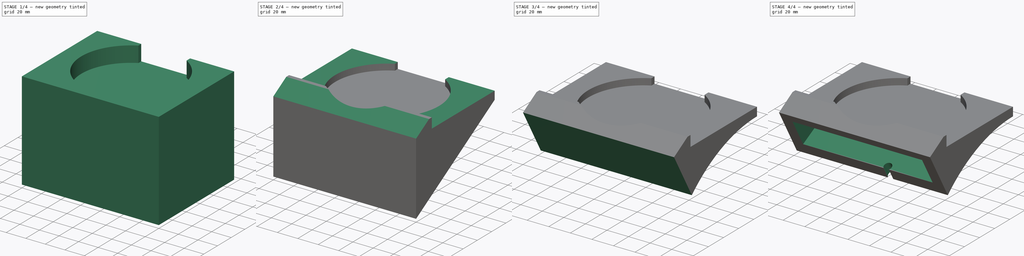
[diagram: build sequence overview — one tinted view per stage of 4, left to right]
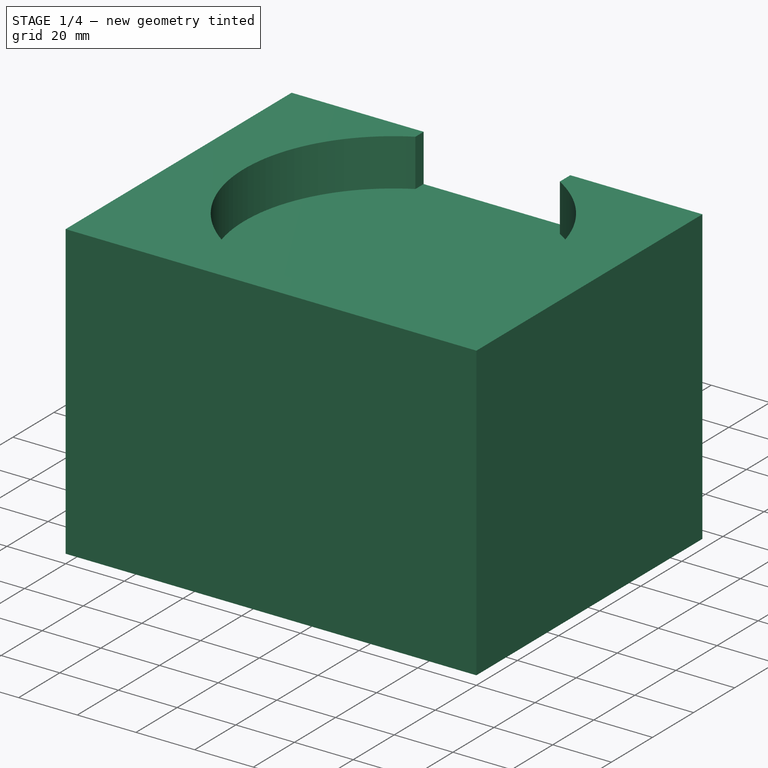
[diagram: stage 1 of 4 — iso view after this stage's code; geometry added in this stage tinted green]
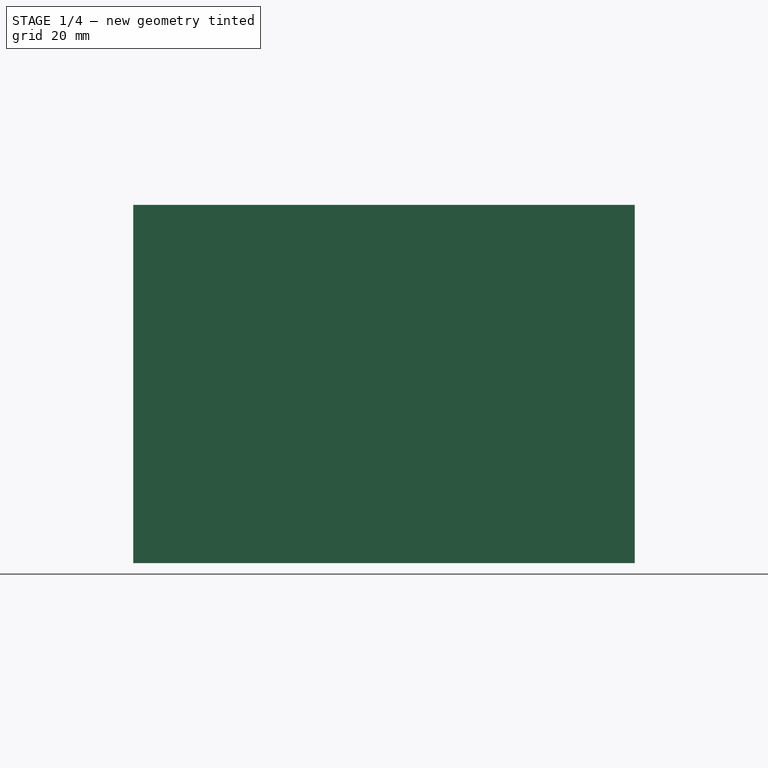
[diagram: stage 1 of 4 — front view after this stage's code; geometry added in this stage tinted green]
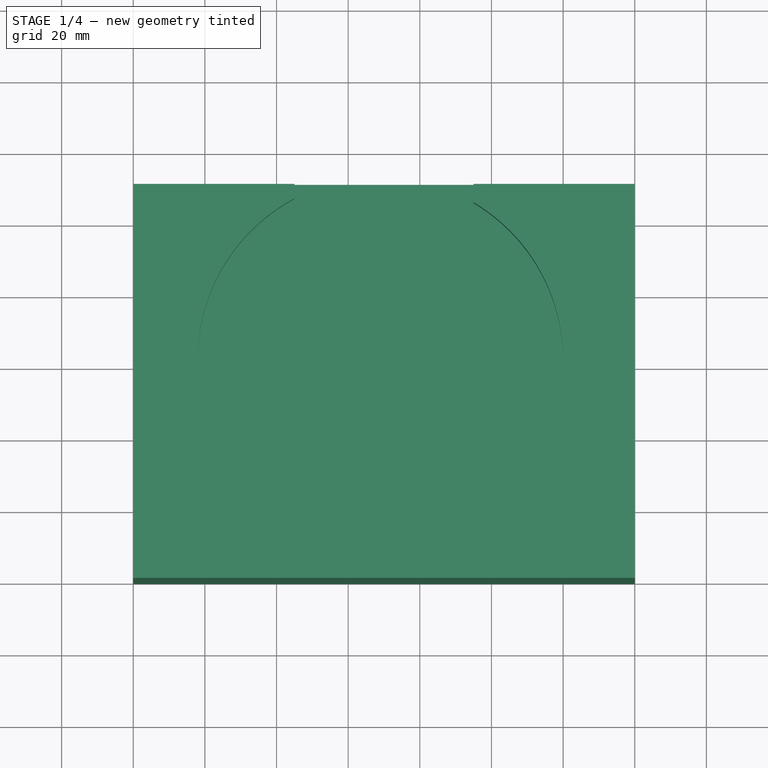
[diagram: stage 1 of 4 — top view after this stage's code; geometry added in this stage tinted green]
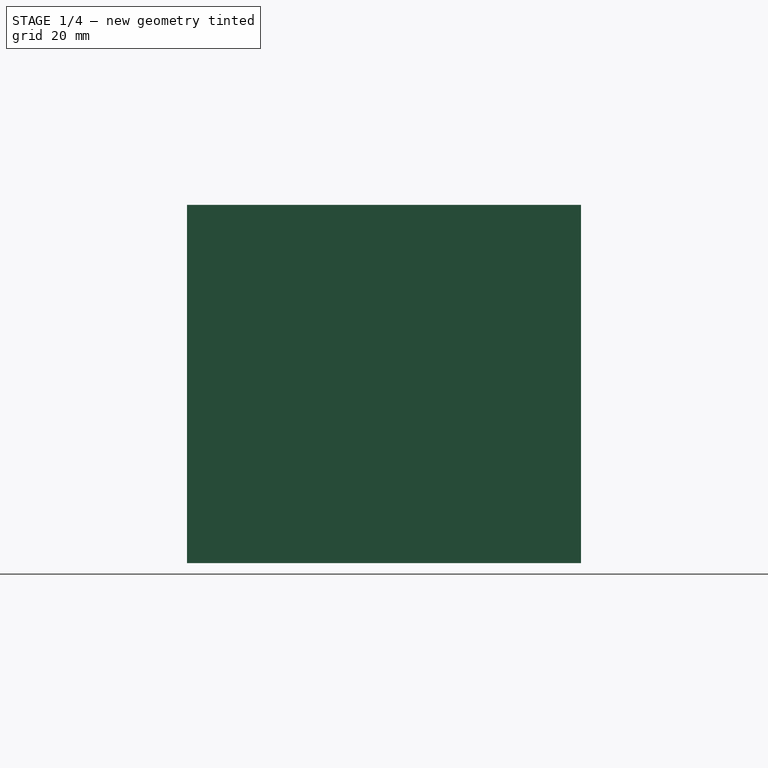
[diagram: stage 1 of 4 — right view after this stage's code; geometry added in this stage tinted green]
FCSTD DOCUMENT  (FreeCAD 1.0R2_voidlinux)
Label: phonestandv2
License: All rights reserved
LicenseURL: https://en.wikipedia.org/wiki/All_rights_reserved
objects: Sketcher::SketchObject×12, PartDesign::Pocket×11, PartDesign::Pad×1, PartDesign::Plane×1, PartDesign::Body×1
note: 62 computed .brp shape members not serialized (recipe doc carries the construction recipe); baked Part::Feature solids carry a one-line shape summary decoded from their .brp

FEATURE [Sketcher::SketchObject] Sketch
  ArcFitTolerance = 1e-06
  AttachmentSupport = -> [XY_Plane]
  FullyConstrained = true
  MakeInternals = false
  MapMode = 5
  sketch-geometry (4):
    g0: LineSegment StartX=0 StartY=0 StartZ=0 EndX=140 EndY=0 EndZ=0
    g1: LineSegment StartX=140 StartY=0 StartZ=0 EndX=140 EndY=110 EndZ=0
    g2: LineSegment StartX=140 StartY=110 StartZ=0 EndX=0 EndY=110 EndZ=0
    g3: LineSegment StartX=0 StartY=110 StartZ=0 EndX=0 EndY=0 EndZ=0
  constraints (11):
    c: Coincident(g0,g1)
    c: Coincident(g1,g2)
    c: Coincident(g2,g3)
    c: Coincident(g3,g0)
    c: Horizontal(g0)
    c: Horizontal(g2)
    c: Vertical(g1)
    c: Vertical(g3)
    c: Distance(g1,g3) = 140
    c: Distance(g0,g2) = 110
    c: Coincident(g0,g-1)
FEATURE [PartDesign::Pad] Pad
  Direction = (0,0,1)
  Length = 100
  Length2 = 10
  Profile = -> Sketch
  ReferenceAxis = -> Sketch [N_Axis]
  Refine = true
  Suppressed = false
  Type = 0
FEATURE [Sketcher::SketchObject] Sketch001
  ArcFitTolerance = 1e-06
  AttachmentSupport = -> [Pad]
  FullyConstrained = true
  MakeInternals = false
  MapMode = 5
  Placement = pos=(0,0,100) rot=(0,0,1;0rad)
  sketch-geometry (1):
    g0: Circle CenterX=69 CenterY=61 CenterZ=0 NormalX=0 NormalY=0 NormalZ=1 AngleXU=0 Radius=51
  constraints (3):
    c: Diameter(g0) = 102
    c: DistanceY(g-1,g0) = 61
    c: DistanceX(g-1,g0) = 69
FEATURE [PartDesign::Pocket] Pocket
  BaseFeature = -> Pad
  Direction = (0,0,-1)
  Length = 16.1
  Length2 = 5
  Profile = -> Sketch001
  ReferenceAxis = -> Sketch001 [N_Axis]
  Refine = true
  Suppressed = false
  Type = 0
FEATURE [Sketcher::SketchObject] Sketch002
  ArcFitTolerance = 1e-06
  AttachmentSupport = -> [Pocket]
  FullyConstrained = true
  MakeInternals = false
  MapMode = 5
  Placement = pos=(0,0,100) rot=(0,0,1;0rad)
  sketch-geometry (4):
    g0: LineSegment StartX=45 StartY=110 StartZ=0 EndX=95 EndY=110 EndZ=0
    g1: LineSegment StartX=95 StartY=110 StartZ=0 EndX=95 EndY=102.851 EndZ=0
    g2: LineSegment StartX=95 StartY=102.851 StartZ=0 EndX=45 EndY=102.851 EndZ=0
    g3: LineSegment StartX=45 StartY=110 StartZ=0 EndX=45 EndY=102.851 EndZ=0
  constraints (12):
    c: Distance(g0) = 50
    c: Horizontal(g0)
    c: DistanceX(g-1,g0) = 45
    c: DistanceY(g-1,g0) = 110
    c: Vertical(g1)
    c: Coincident(g1,g0)
    c: Horizontal(g2)
    c: Coincident(g2,g1)
    c: Equal(g2,g0)
    c: Vertical(g3)
    c: Coincident(g3,g0)
    c: Coincident(g3,g2)
FEATURE [PartDesign::Pocket] Pocket001
  BaseFeature = -> Pocket
  Direction = (0,0,-1)
  Length = 16.1
  Length2 = 5
  Profile = -> Sketch002
  ReferenceAxis = -> Sketch002 [N_Axis]
  Refine = true
  Suppressed = false
  Type = 0
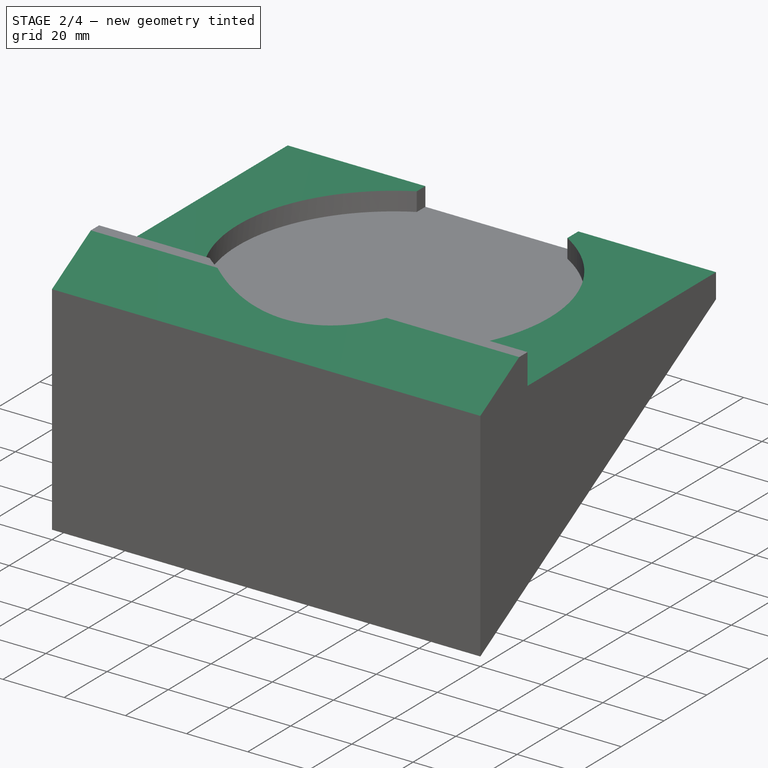
[diagram: stage 2 of 4 — iso view after this stage's code; geometry added in this stage tinted green]
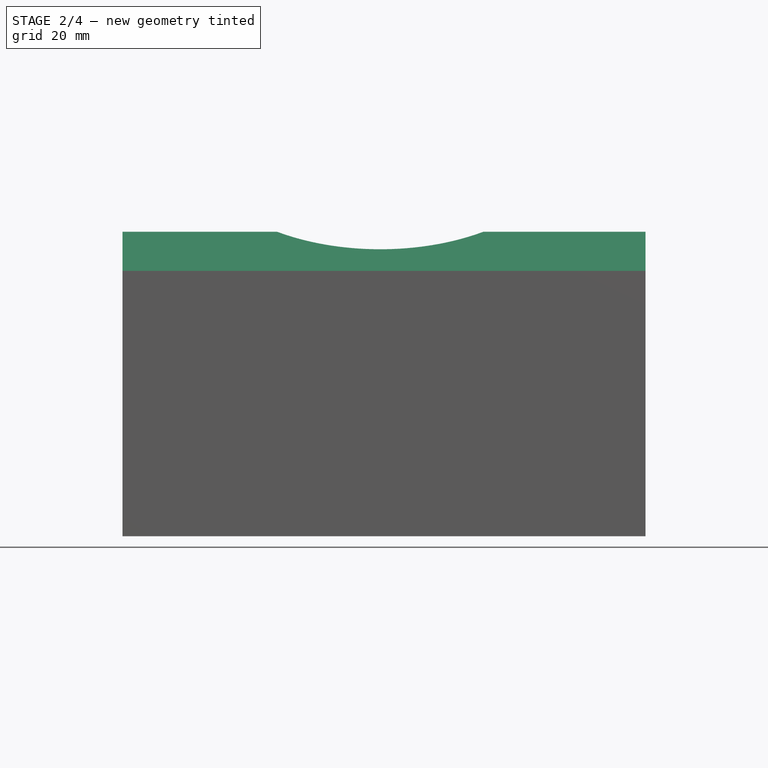
[diagram: stage 2 of 4 — front view after this stage's code; geometry added in this stage tinted green]
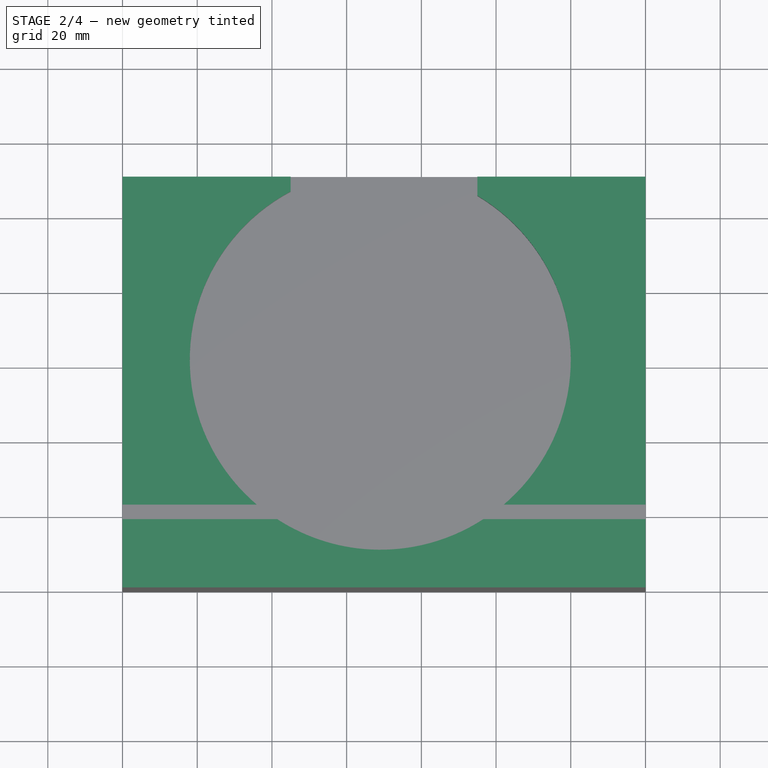
[diagram: stage 2 of 4 — top view after this stage's code; geometry added in this stage tinted green]
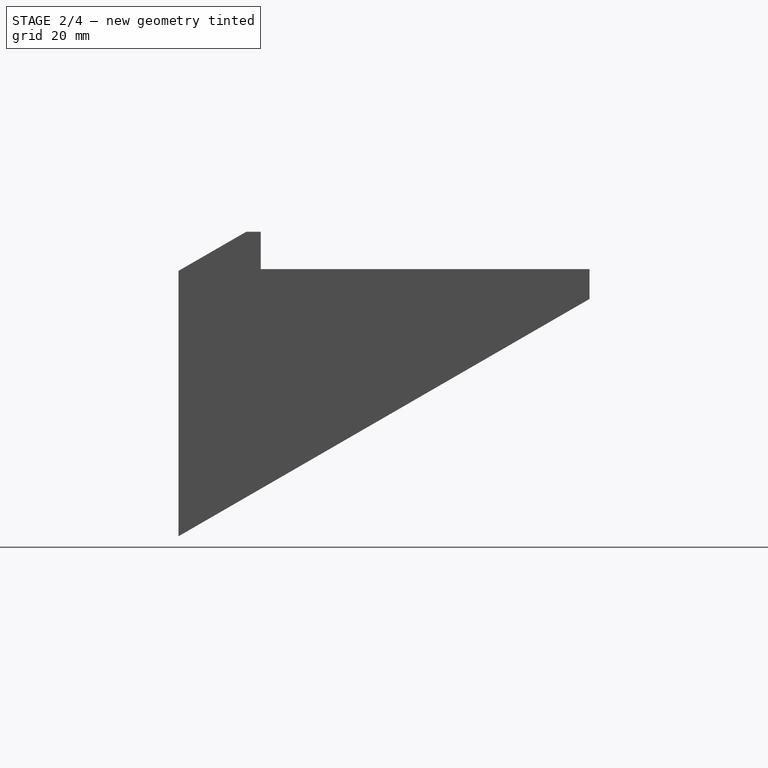
[diagram: stage 2 of 4 — right view after this stage's code; geometry added in this stage tinted green]
FEATURE [Sketcher::SketchObject] Sketch003
  ArcFitTolerance = 1e-06
  AttachmentSupport = -> [Pocket001]
  FullyConstrained = true
  MakeInternals = false
  MapMode = 5
  Placement = pos=(0,0,100) rot=(0,0,1;0rad)
  sketch-geometry (4):
    g0: LineSegment StartX=0 StartY=22 StartZ=0 EndX=140 EndY=22 EndZ=0
    g1: LineSegment StartX=0 StartY=22 StartZ=0 EndX=0 EndY=112 EndZ=0
    g2: LineSegment StartX=0 StartY=112 StartZ=0 EndX=140 EndY=112 EndZ=0
    g3: LineSegment StartX=140 StartY=112 StartZ=0 EndX=140 EndY=22 EndZ=0
  constraints (12):
    c: Distance(g0) = 140
    c: Horizontal(g0)
    c: PointOnObject(g0,g-2)
    c: DistanceY(g-1,g0) = 22
    c: Distance(g1) = 90
    c: Coincident(g1,g0)
    c: PointOnObject(g1,g-2)
    c: Distance(g2) = 140
    c: Coincident(g2,g1)
    c: Horizontal(g2)
    c: Coincident(g3,g2)
    c: Coincident(g3,g0)
FEATURE [PartDesign::Pocket] Pocket002
  BaseFeature = -> Pocket001
  Direction = (0,0,-1)
  Length = 10
  Length2 = 5
  Profile = -> Sketch003
  ReferenceAxis = -> Sketch003 [N_Axis]
  Refine = true
  Suppressed = false
  Type = 0
FEATURE [Sketcher::SketchObject] Sketch005
  ArcFitTolerance = 1e-06
  AttachmentSupport = -> [Pocket002]
  FullyConstrained = true
  MakeInternals = false
  MapMode = 5
  Placement = pos=(0,0,0) rot=(0.57735,-0.57735,-0.57735;2.0944rad)
  sketch-geometry (3):
    g0: LineSegment StartX=-18.9808 StartY=100.5 StartZ=0 EndX=7 EndY=85.5 EndZ=0
    g1: LineSegment StartX=-18.9808 StartY=100.5 StartZ=0 EndX=7 EndY=100.5 EndZ=0
    g2: LineSegment StartX=7 StartY=85.5 StartZ=0 EndX=7 EndY=100.5 EndZ=0
  constraints (9):
    c: Distance(g0) = 30
    c: Angle(g-1,g0) = -0.523599
    c: DistanceY(g-1,g0) = 85.5
    c: DistanceX(g-1,g0) = 7
    c: Horizontal(g1)
    c: Coincident(g1,g0)
    c: Coincident(g2,g0)
    c: Coincident(g2,g1)
    c: Vertical(g2)
FEATURE [PartDesign::Pocket] Pocket004
  BaseFeature = -> Pocket002
  Direction = (1,0,0)
  Length = 5
  Length2 = 5
  Profile = -> Sketch005
  ReferenceAxis = -> Sketch005 [N_Axis]
  Refine = true
  Suppressed = false
  Type = 1
FEATURE [Sketcher::SketchObject] Sketch006
  ArcFitTolerance = 1e-06
  AttachmentSupport = -> [Pocket004]
  FullyConstrained = true
  MakeInternals = false
  MapMode = 5
  Placement = pos=(0,0,0) rot=(0.57735,-0.57735,-0.57735;2.0944rad)
  sketch-geometry (4):
    g0: LineSegment StartX=-110 StartY=82 StartZ=0 EndX=0 EndY=18.4914 EndZ=0
    g1: LineSegment StartX=0 StartY=18.4914 StartZ=0 EndX=0 EndY=0 EndZ=0
    g2: LineSegment StartX=0 StartY=0 StartZ=0 EndX=-110 EndY=0 EndZ=0
    g3: LineSegment StartX=-110 StartY=0 StartZ=0 EndX=-110 EndY=82 EndZ=0
  constraints (11):
    c: Angle(g-1,g0) = -0.523599
    c: PointOnObject(g0,g-2)
    c: DistanceY(g-1,g0) = 82
    c: Coincident(g1,g0)
    c: Coincident(g1,g-1)
    c: Distance(g2) = 110
    c: Coincident(g2,g1)
    c: PointOnObject(g2,g-1)
    c: Coincident(g3,g2)
    c: Coincident(g3,g0)
    c: Vertical(g3)
FEATURE [PartDesign::Pocket] Pocket005
  BaseFeature = -> Pocket004
  Direction = (1,0,0)
  Length = 140
  Length2 = 5
  Profile = -> Sketch006
  ReferenceAxis = -> Sketch006 [N_Axis]
  Refine = true
  Suppressed = false
  Type = 0
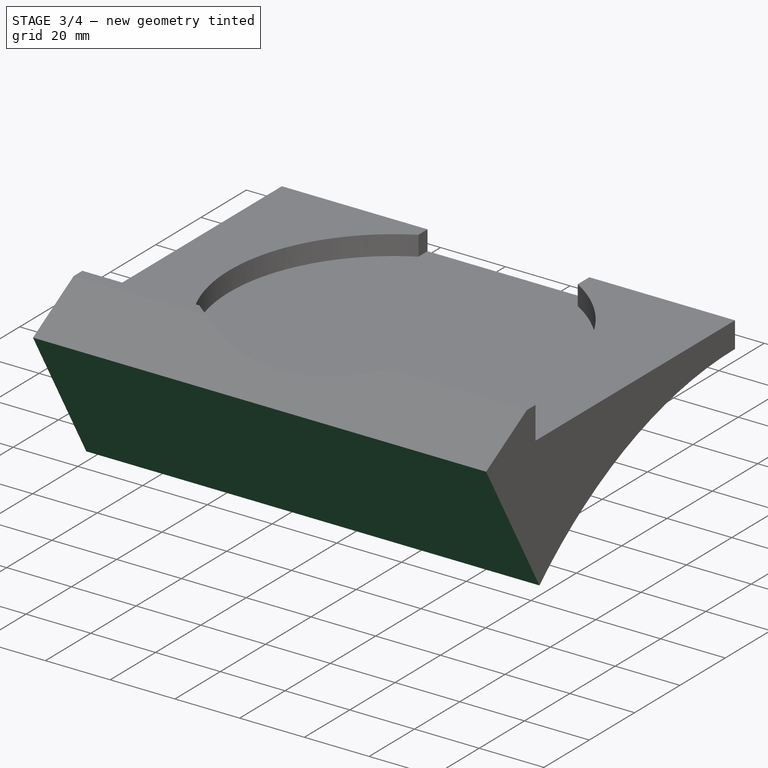
[diagram: stage 3 of 4 — iso view after this stage's code; geometry added in this stage tinted green]
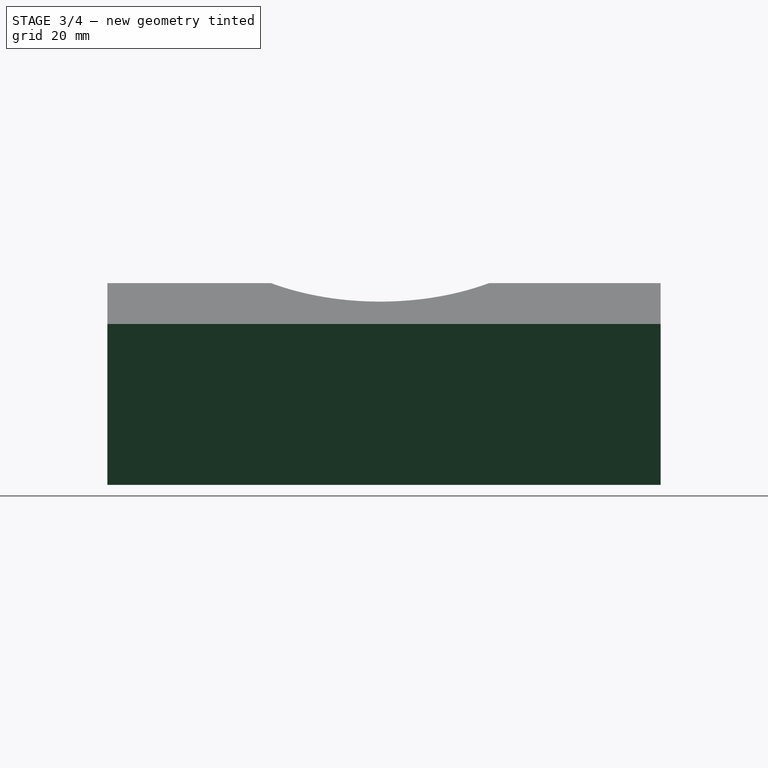
[diagram: stage 3 of 4 — front view after this stage's code; geometry added in this stage tinted green]
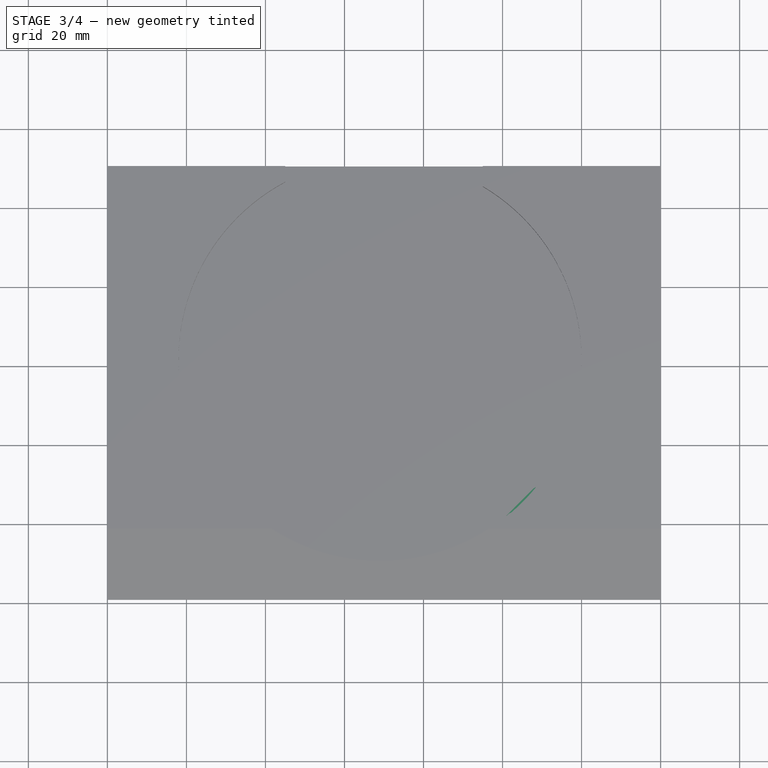
[diagram: stage 3 of 4 — top view after this stage's code; geometry added in this stage tinted green]
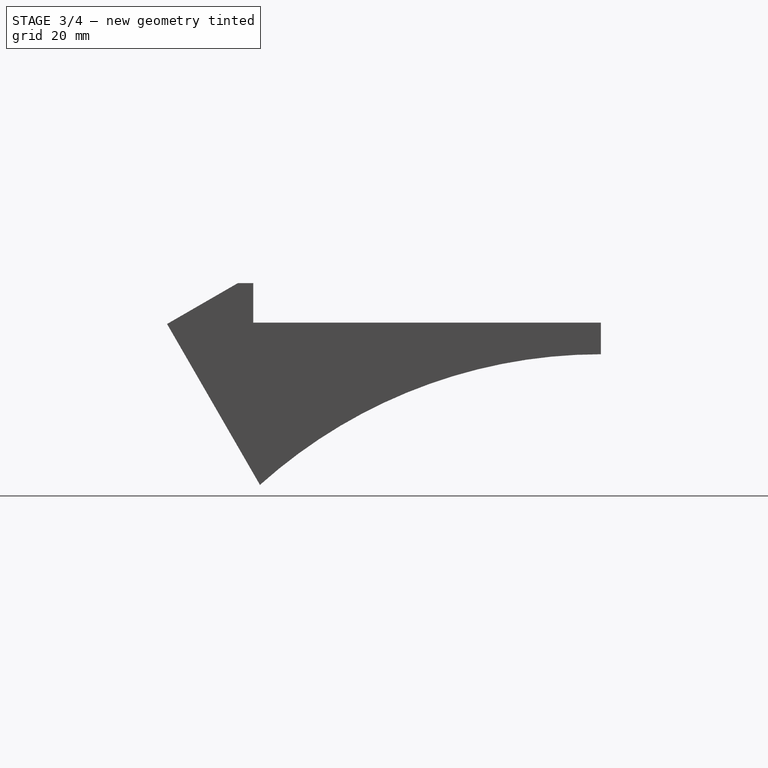
[diagram: stage 3 of 4 — right view after this stage's code; geometry added in this stage tinted green]
FEATURE [Sketcher::SketchObject] Sketch007
  ArcFitTolerance = 1e-06
  AttachmentSupport = -> [Pocket005]
  FullyConstrained = true
  MakeInternals = false
  MapMode = 5
  Placement = pos=(0,0,0) rot=(0.57735,-0.57735,-0.57735;2.0944rad)
  sketch-geometry (4):
    g0: LineSegment [constr] StartX=0 StartY=0 StartZ=0 EndX=0 EndY=82 EndZ=0
    g1: LineSegment [constr] StartX=0 StartY=82 StartZ=0 EndX=-110 EndY=82 EndZ=0
    g2: LineSegment [constr] StartX=0 StartY=0 StartZ=0 EndX=0 EndY=20.5 EndZ=0
    g3: Circle CenterX=-110 CenterY=-47.124 CenterZ=0 NormalX=0 NormalY=0 NormalZ=1 AngleXU=0 Radius=129.124
  constraints (11):
    c: Distance(g0) = 82
    c: Coincident(g0,g-1)
    c: PointOnObject(g0,g-2)
    c: Distance(g1) = 110
    c: Coincident(g1,g0)
    c: Horizontal(g1)
    c: Distance(g2) = 20.5
    c: Coincident(g2,g0)
    c: PointOnObject(g2,g0)
    c: PointOnObject(g2,g3)
    c: Tangent(g1,g3) = -1.5708
FEATURE [PartDesign::Pocket] Pocket006
  BaseFeature = -> Pocket005
  Direction = (1,0,0)
  Length = 5
  Length2 = 5
  Profile = -> Sketch007
  ReferenceAxis = -> Sketch007 [N_Axis]
  Refine = true
  Suppressed = false
  Type = 1
FEATURE [Sketcher::SketchObject] Sketch008
  ArcFitTolerance = 1e-06
  AttachmentSupport = -> [Pocket006]
  FullyConstrained = true
  MakeInternals = false
  MapMode = 5
  Placement = pos=(0,0,0) rot=(0.57735,-0.57735,-0.57735;2.0944rad)
  sketch-geometry (3):
    g0: LineSegment StartX=3.6e-15 StartY=0 StartZ=0 EndX=0 EndY=90 EndZ=0
    g1: LineSegment StartX=0 StartY=90 StartZ=0 EndX=-30 EndY=38.0385 EndZ=0
    g2: LineSegment StartX=-30 StartY=38.0385 StartZ=0 EndX=3.6e-15 EndY=0 EndZ=0
  constraints (8):
    c: Distance(g0) = 90
    c: Coincident(g0,g-1)
    c: PointOnObject(g0,g-2)
    c: Distance(g1) = 60
    c: Angle(g-1,g1) = -2.0944
    c: Coincident(g1,g0)
    c: Coincident(g2,g1)
    c: Coincident(g2,g0)
FEATURE [PartDesign::Pocket] Pocket007
  BaseFeature = -> Pocket006
  Direction = (1,0,0)
  Length = 5
  Length2 = 5
  Profile = -> Sketch008
  ReferenceAxis = -> Sketch008 [N_Axis]
  Refine = true
  Suppressed = false
  Type = 1
FEATURE [Sketcher::SketchObject] Sketch009
  ArcFitTolerance = 1e-06
  AttachmentSupport = -> [Pocket007]
  FullyConstrained = true
  MakeInternals = false
  MapMode = 5
  Placement = pos=(0,0,90) rot=(0,0,1;0rad)
  sketch-geometry (11):
    g0: LineSegment StartX=106.364 StartY=14.2645 StartZ=0 EndX=114.142 EndY=22.0426 EndZ=0
    g1: LineSegment StartX=114.142 StartY=24.8711 StartZ=0 EndX=110.607 EndY=28.4066 EndZ=0
    g2: LineSegment StartX=107.778 StartY=28.4066 StartZ=0 EndX=100 EndY=20.6284 EndZ=0
    g3: LineSegment StartX=100 StartY=17.8 StartZ=0 EndX=103.536 EndY=14.2645 EndZ=0
    g4: ArcOfCircle CenterX=104.95 CenterY=15.6787 CenterZ=0 NormalX=0 NormalY=0 NormalZ=1 AngleXU=0 Radius=2 StartAngle=3.92699 EndAngle=5.49779
    g5: ArcOfCircle CenterX=112.728 CenterY=23.4569 CenterZ=0 NormalX=0 NormalY=0 NormalZ=1 AngleXU=0 Radius=2 StartAngle=5.49779 EndAngle=7.06858
    g6: ArcOfCircle CenterX=109.192 CenterY=26.9924 CenterZ=0 NormalX=0 NormalY=0 NormalZ=1 AngleXU=0 Radius=2 StartAngle=0.785398 EndAngle=2.35619
    g7: ArcOfCircle CenterX=101.414 CenterY=19.2142 CenterZ=0 NormalX=0 NormalY=0 NormalZ=1 AngleXU=0 Radius=2 StartAngle=2.35619 EndAngle=3.92699
    g8: GeomPoint [constr] X=104.95 Y=12.8503 Z=0
    g9: GeomPoint [constr] X=115.556 Y=23.4569 Z=0
    g10: GeomPoint [constr] X=109.192 Y=29.8208 Z=0
  constraints (26):
    c: Tangent(g0,g4) = -1.5708
    c: Tangent(g0,g5) = -1.5708
    c: Tangent(g1,g5) = -1.5708
    c: Tangent(g1,g6) = -1.5708
    c: Tangent(g2,g6) = -1.5708
    c: Tangent(g2,g7) = -1.5708
    c: Tangent(g3,g7) = -1.5708
    c: Tangent(g3,g4) = -1.5708
    c: Parallel(g0,g2)
    c: Parallel(g1,g3)
    c: Perpendicular(g0,g1)
    c: Equal(g4,g5)
    c: Equal(g5,g6)
    c: Equal(g6,g7)
    c: PointOnObject(g9,g0)
    c: PointOnObject(g9,g1)
    c: PointOnObject(g8,g0)
    c: PointOnObject(g8,g3)
    c: PointOnObject(g10,g1)
    c: PointOnObject(g10,g2)
    c: Distance(g1,g3) = 15
    c: Distance(g0,g2) = 9
    c: Angle(g-1,g0) = 0.785398
    c: Radius(g5) = 2
    c: DistanceX(g-1,g3) = 100
    c: DistanceY(g-1,g3) = 17.8
FEATURE [PartDesign::Pocket] Pocket008
  BaseFeature = -> Pocket007
  Direction = (0,0,-1)
  Length = 7.1
  Length2 = -1.5
  Offset = -15
  Profile = -> Sketch009
  ReferenceAxis = -> Sketch009 [N_Axis]
  Refine = true
  Suppressed = false
  Type = 4
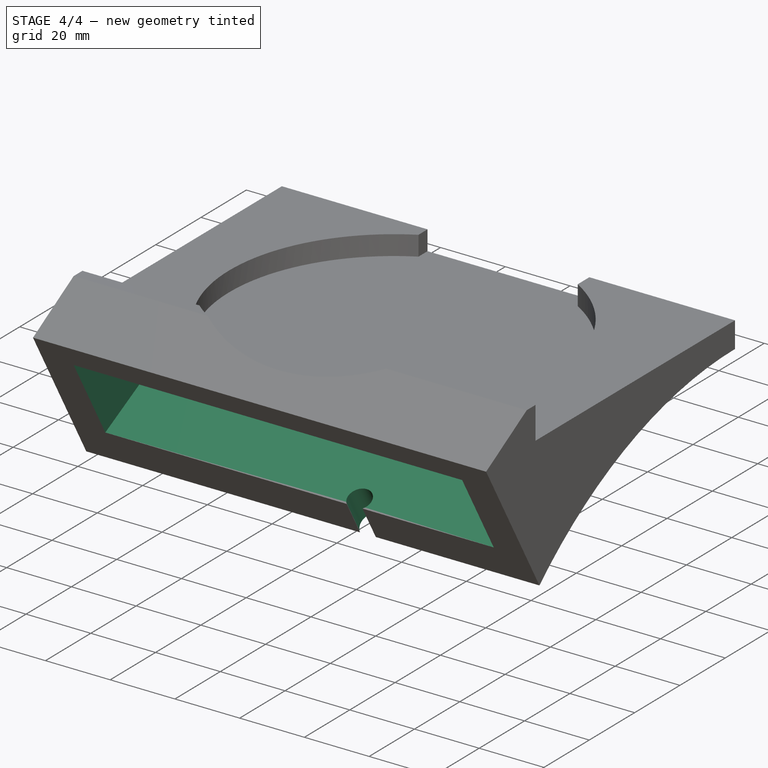
[diagram: stage 4 of 4 — iso view after this stage's code; geometry added in this stage tinted green]
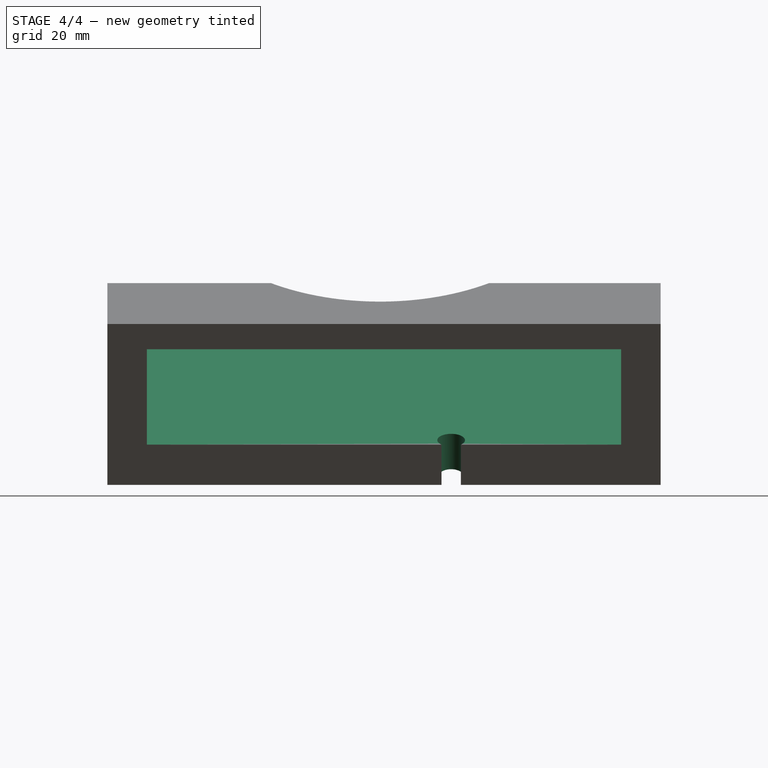
[diagram: stage 4 of 4 — front view after this stage's code; geometry added in this stage tinted green]
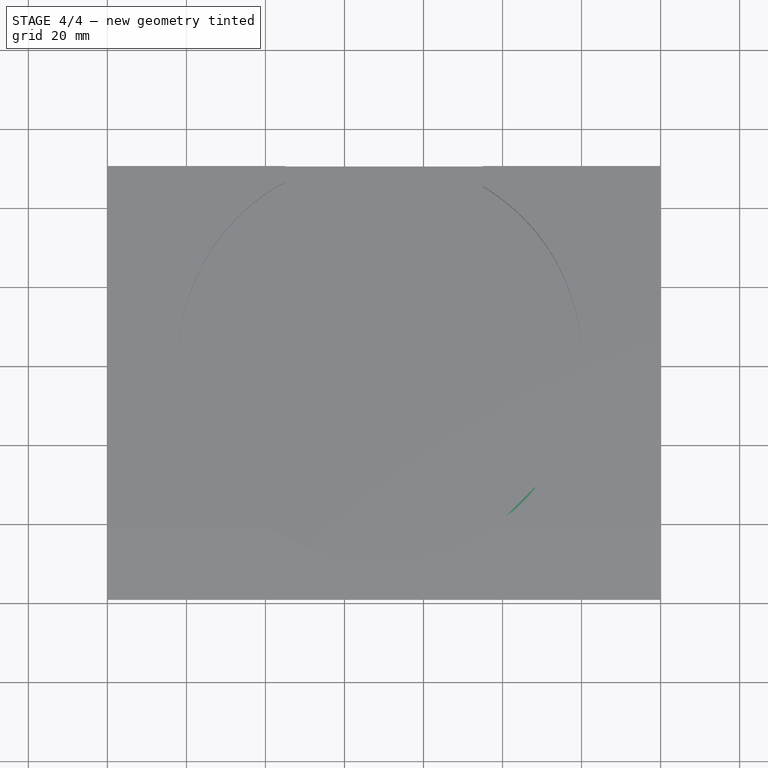
[diagram: stage 4 of 4 — top view after this stage's code; geometry added in this stage tinted green]
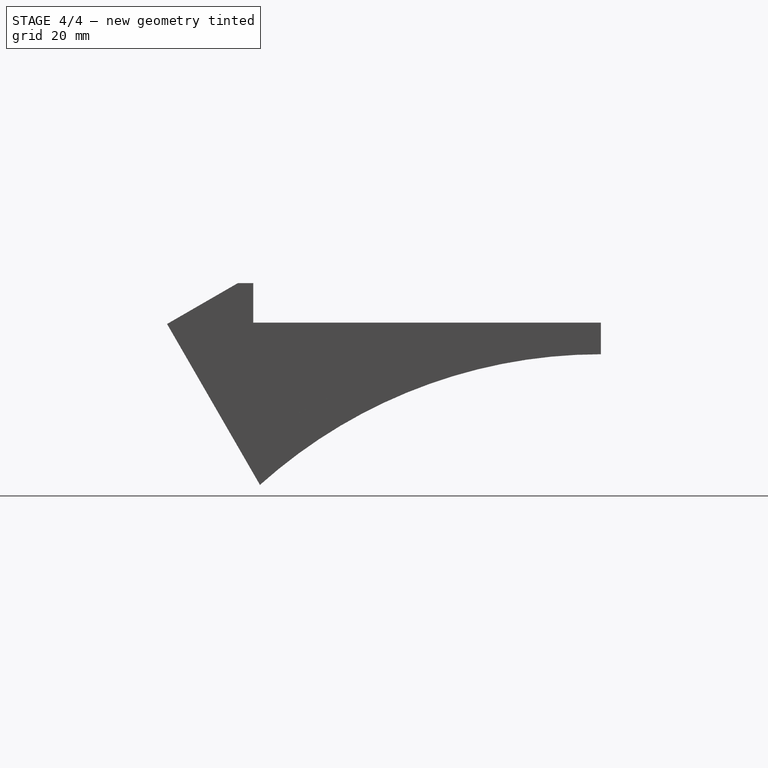
[diagram: stage 4 of 4 — right view after this stage's code; geometry added in this stage tinted green]
FEATURE [Sketcher::SketchObject] Sketch010
  ArcFitTolerance = 1e-06
  FullyConstrained = true
  MakeInternals = false
  MapMode = 5
  Placement = pos=(140,0,0) rot=(0.57735,0.57735,0.57735;2.0944rad)
  sketch-geometry (3):
    g0: LineSegment StartX=0 StartY=83.2485 StartZ=0 EndX=65 EndY=83.2485 EndZ=0
    g1: LineSegment StartX=65 StartY=83.2485 StartZ=0 EndX=0 EndY=50 EndZ=0
    g2: LineSegment StartX=0 StartY=50 StartZ=0 EndX=0 EndY=83.2485 EndZ=0
  constraints (9):
    c: Distance(g0) = 65
    c: Horizontal(g0)
    c: PointOnObject(g0,g-2)
    c: Coincident(g1,g0)
    c: PointOnObject(g1,g-2)
    c: Coincident(g2,g1)
    c: Coincident(g2,g0)
    c: DistanceY(g-1,g1) = 50
    c: Distance(g1) = 73.01
FEATURE [PartDesign::Pocket] Pocket010
  BaseFeature = -> Pocket008
  Direction = (-1,0,0)
  Length = 130
  Length2 = -10
  Offset = -10
  Profile = -> Sketch010
  ReferenceAxis = -> Sketch010 [N_Axis]
  Refine = true
  Suppressed = false
  Type = 4
FEATURE [PartDesign::Plane] DatumPlane
  AttachmentOffset = pos=(42,42,0) rot=(-0.281085,0.678598,0.678598;1.09606rad)
  AttachmentSupport = -> [Pocket010]
  Length = 283.364
  MapMode = 5
  Placement = pos=(42,-42,83.2485) rot=(0.862856,-0.357407,0.357407;2.84764rad)
  ResizeMode = 0
  Width = 257.107
FEATURE [Sketcher::SketchObject] Sketch011
  ArcFitTolerance = 1e-06
  AttachmentSupport = -> [DatumPlane]
  FullyConstrained = true
  MakeInternals = false
  MapMode = 5
  Placement = pos=(42,-42,83.2485) rot=(0.862856,-0.357407,0.357407;2.84764rad)
  sketch-geometry (11):
    g0: LineSegment StartX=8.1 StartY=-96.29 StartZ=0 EndX=8.1 EndY=-85.29 EndZ=0
    g1: LineSegment StartX=6.1 StartY=-83.29 StartZ=0 EndX=1.1 EndY=-83.29 EndZ=0
    g2: LineSegment StartX=-0.9 StartY=-85.29 StartZ=0 EndX=-0.9 EndY=-96.29 EndZ=0
    g3: LineSegment StartX=1.1 StartY=-98.29 StartZ=0 EndX=6.1 EndY=-98.29 EndZ=0
    g4: ArcOfCircle CenterX=6.1 CenterY=-96.29 CenterZ=0 NormalX=0 NormalY=0 NormalZ=1 AngleXU=0 Radius=2 StartAngle=4.71239 EndAngle=6.28319
    g5: ArcOfCircle CenterX=6.1 CenterY=-85.29 CenterZ=0 NormalX=0 NormalY=0 NormalZ=1 AngleXU=0 Radius=2 StartAngle=3.5e-15 EndAngle=1.5708
    g6: ArcOfCircle CenterX=1.1 CenterY=-85.29 CenterZ=0 NormalX=0 NormalY=0 NormalZ=1 AngleXU=0 Radius=2 StartAngle=1.5708 EndAngle=3.14159
    g7: ArcOfCircle CenterX=1.1 CenterY=-96.29 CenterZ=0 NormalX=0 NormalY=0 NormalZ=1 AngleXU=0 Radius=2 StartAngle=3.14159 EndAngle=4.71239
    g8: GeomPoint [constr] X=8.1 Y=-98.29 Z=0
    g9: GeomPoint [constr] X=8.1 Y=-83.29 Z=0
    g10: GeomPoint [constr] X=-0.9 Y=-83.29 Z=0
  constraints (26):
    c: Tangent(g0,g4) = -1.5708
    c: Tangent(g0,g5) = -1.5708
    c: Tangent(g1,g5) = -1.5708
    c: Tangent(g1,g6) = -1.5708
    c: Tangent(g2,g6) = -1.5708
    c: Tangent(g2,g7) = -1.5708
    c: Tangent(g3,g7) = -1.5708
    c: Tangent(g3,g4) = -1.5708
    c: Parallel(g0,g2)
    c: Parallel(g1,g3)
    c: Perpendicular(g0,g1)
    c: Equal(g4,g5)
    c: Equal(g5,g6)
    c: Equal(g6,g7)
    c: PointOnObject(g9,g0)
    c: PointOnObject(g9,g1)
    c: PointOnObject(g8,g0)
    c: PointOnObject(g8,g3)
    c: PointOnObject(g10,g1)
    c: PointOnObject(g10,g2)
    c: Distance(g1,g3) = 15
    c: Distance(g0,g2) = 9
    c: Vertical(g0)
    c: Radius(g5) = 2
    c: DistanceX(g1,g-1) = -1.1
    c: DistanceY(g1,g-1) = 83.29
FEATURE [PartDesign::Pocket] Pocket011
  BaseFeature = -> Pocket010
  Direction = (-0.5,0.5,0.707107)
  Length = 0
  Length2 = 5
  Profile = -> Sketch011
  ReferenceAxis = -> Sketch011 [N_Axis]
  Refine = true
  Reversed = true
  Suppressed = false
  Type = 1
FEATURE [Sketcher::SketchObject] Sketch012
  ArcFitTolerance = 1e-06
  AttachmentSupport = -> [Pocket011]
  FullyConstrained = true
  MakeInternals = false
  MapMode = 5
  Placement = pos=(0,-38.7726,67.1561) rot=(1,0,0;0.523599rad)
  sketch-geometry (1):
    g0: Circle CenterX=87 CenterY=47.5 CenterZ=0 NormalX=0 NormalY=0 NormalZ=1 AngleXU=0 Radius=3.5
  constraints (3):
    c: Diameter(g0) = 7
    c: DistanceY(g-1,g0) = 47.5
    c: DistanceX(g-1,g0) = 87
FEATURE [PartDesign::Pocket] Pocket012
  BaseFeature = -> Pocket011
  Direction = (0,0.5,-0.866025)
  Length = 50
  Length2 = -20
  Profile = -> Sketch012
  ReferenceAxis = -> Sketch012 [N_Axis]
  Refine = true
  Suppressed = false
  Type = 4
FEATURE [PartDesign::Body] Body
  AllowCompound = false
  Group = -> [Sketch,Pad,Sketch001,Pocket,Sketch002,Pocket001,Sketch003,Pocket002,Sketch005,Pocket004,Sketch006,Pocket005,Sketch007,Pocket006,Sketch008,Pocket007,Sketch009,Pocket008,Sketch010,Pocket010,DatumPlane,Sketch011,Pocket011,Sketch012,Pocket012]
  Origin = -> Origin
  Tip = -> Pocket012
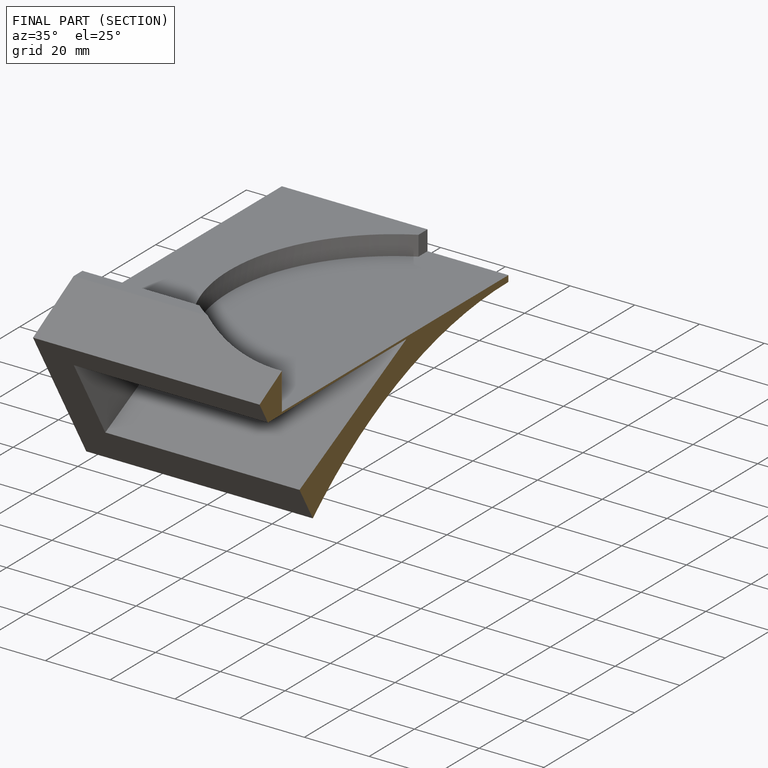
[diagram: finished part — half-section view (interior)]
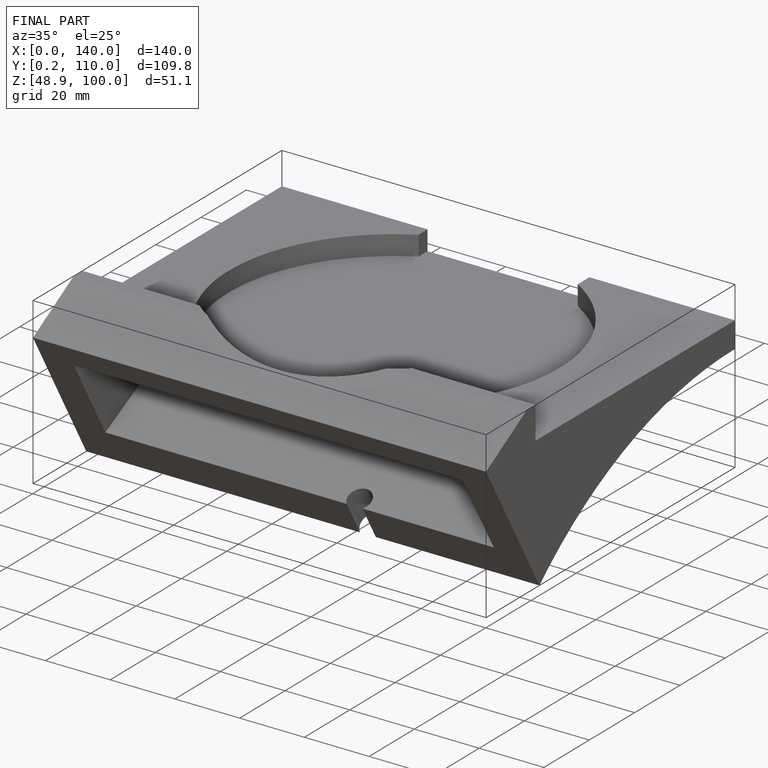
[diagram: finished part — iso view with bounding-box wireframe]
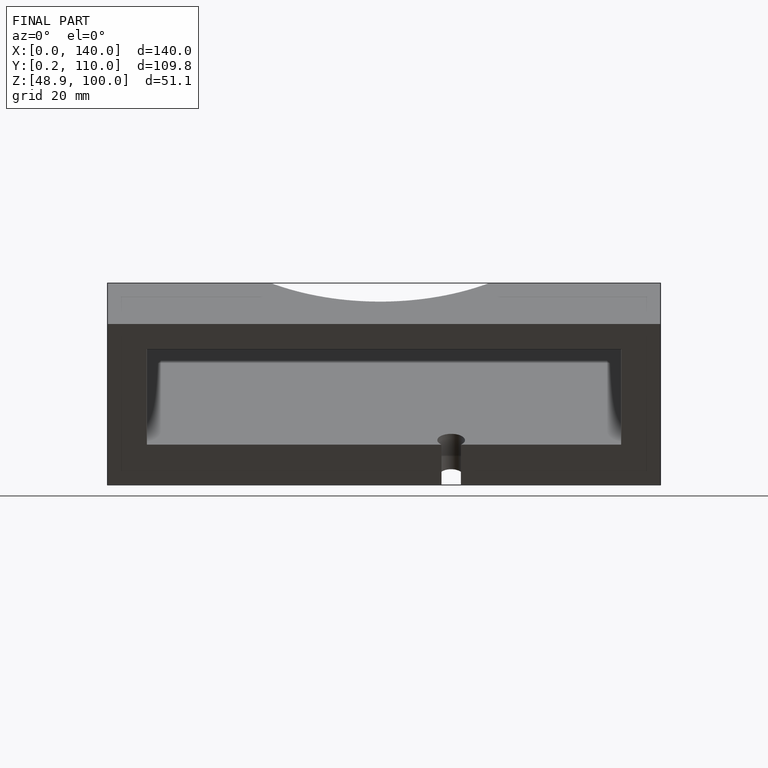
[diagram: finished part — front view with bounding-box wireframe]
